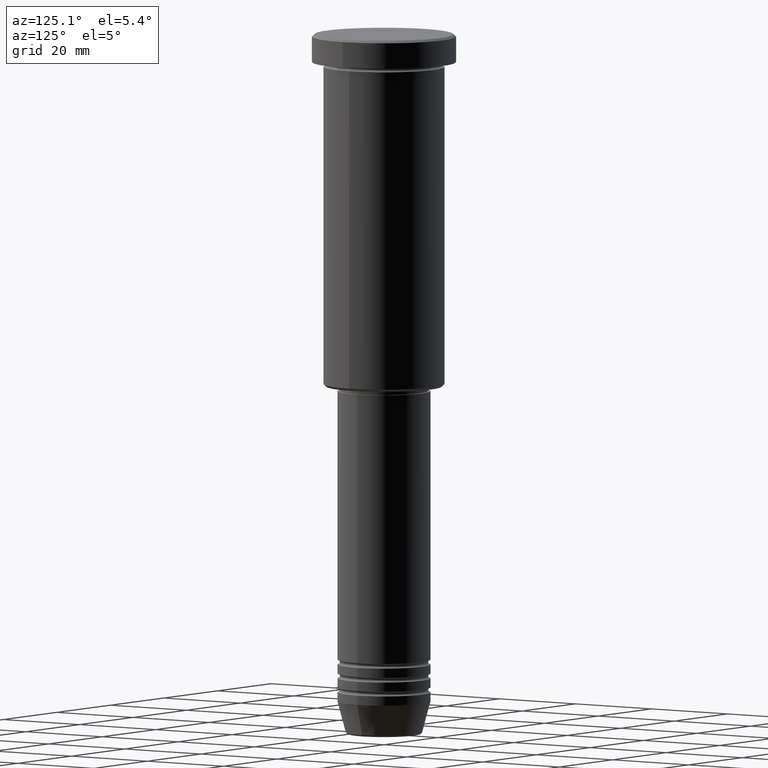
[diagram: clean part render]
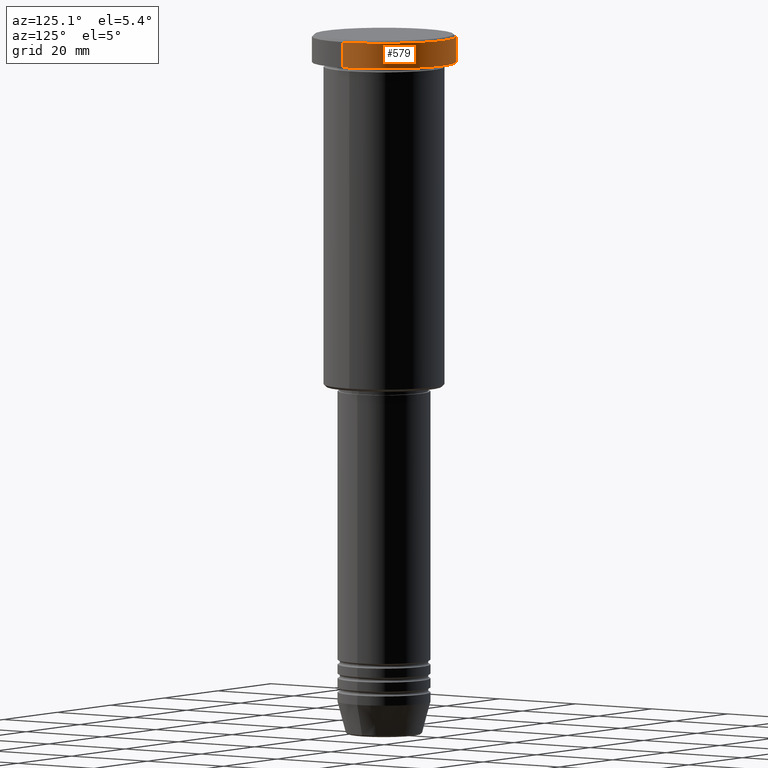
[diagram: same view with one face highlighted and labeled with its STEP entity id]
A machine part, auxiliary view. The second image highlights one B-rep face of the part: STEP entity #579.
In plain terms, the highlighted cylindrical surface (partial cylindrical patch) has radius 15.5 mm, axis along (-0, -0, 1).
Its self-contained STEP definition (entity closure, byte-faithful):
#46 = DIRECTION ( 'NONE',  ( 1.000000000000000000, 0.000000000000000000, 0.000000000000000000 ) ) ;
#53 = EDGE_CURVE ( 'NONE', #1026, #710, #176, .T. ) ;
#99 = CARTESIAN_POINT ( 'NONE',  ( 0.000000000000000000, 0.000000000000000000, 0.000000000000000000 ) ) ;
#112 = DIRECTION ( 'NONE',  ( -0.000000000000000000, -0.000000000000000000, 1.000000000000000000 ) ) ;
#176 = LINE ( 'NONE', #844, #185 ) ;
#185 = VECTOR ( 'NONE', #485, 1000.000000000000000 ) ;
#204 = ORIENTED_EDGE ( 'NONE', *, *, #853, .T. ) ;
#228 = AXIS2_PLACEMENT_3D ( 'NONE', #1145, #730, #798 ) ;
#255 = EDGE_LOOP ( 'NONE', ( #204, #833, #434, #373 ) ) ;
#283 = CIRCLE ( 'NONE', #228, 15.50000000000000000 ) ;
#315 = DIRECTION ( 'NONE',  ( -0.000000000000000000, -0.000000000000000000, 1.000000000000000000 ) ) ;
#322 = VERTEX_POINT ( 'NONE', #413 ) ;
#324 = EDGE_CURVE ( 'NONE', #322, #665, #1130, .T. ) ;
#373 = ORIENTED_EDGE ( 'NONE', *, *, #324, .F. ) ;
#384 = CIRCLE ( 'NONE', #422, 15.50000000000000000 ) ;
#413 = CARTESIAN_POINT ( 'NONE',  ( 15.50000000000000000, 0.000000000000000000, -5.999999999999995559 ) ) ;
#419 = CARTESIAN_POINT ( 'NONE',  ( -15.50000000000000000, 1.898202538678397557E-15, -0.4999999999999848455 ) ) ;
#422 = AXIS2_PLACEMENT_3D ( 'NONE', #782, #604, #46 ) ;
#434 = ORIENTED_EDGE ( 'NONE', *, *, #720, .T. ) ;
#485 = DIRECTION ( 'NONE',  ( -0.000000000000000000, -0.000000000000000000, 1.000000000000000000 ) ) ;
#579 = ADVANCED_FACE ( 'NONE', ( #747 ), #929, .T. ) ;
#604 = DIRECTION ( 'NONE',  ( 0.000000000000000000, 0.000000000000000000, -1.000000000000000000 ) ) ;
#665 = VERTEX_POINT ( 'NONE', #1135 ) ;
#683 = CARTESIAN_POINT ( 'NONE',  ( 15.50000000000000000, 0.000000000000000000, 0.000000000000000000 ) ) ;
#710 = VERTEX_POINT ( 'NONE', #419 ) ;
#720 = EDGE_CURVE ( 'NONE', #710, #665, #384, .T. ) ;
#730 = DIRECTION ( 'NONE',  ( -0.000000000000000000, -0.000000000000000000, 1.000000000000000000 ) ) ;
#747 = FACE_OUTER_BOUND ( 'NONE', #255, .T. ) ;
#782 = CARTESIAN_POINT ( 'NONE',  ( 0.000000000000000000, 0.000000000000000000, -0.4999999999999848455 ) ) ;
#798 = DIRECTION ( 'NONE',  ( 1.000000000000000000, 0.000000000000000000, 0.000000000000000000 ) ) ;
#833 = ORIENTED_EDGE ( 'NONE', *, *, #53, .T. ) ;
#837 = VECTOR ( 'NONE', #315, 1000.000000000000000 ) ;
#844 = CARTESIAN_POINT ( 'NONE',  ( -15.50000000000000000, 1.898202538678397557E-15, 0.000000000000000000 ) ) ;
#853 = EDGE_CURVE ( 'NONE', #322, #1026, #283, .T. ) ;
#929 = CYLINDRICAL_SURFACE ( 'NONE', #1080, 15.50000000000000000 ) ;
#1019 = DIRECTION ( 'NONE',  ( 1.000000000000000000, 0.000000000000000000, 0.000000000000000000 ) ) ;
#1026 = VERTEX_POINT ( 'NONE', #1107 ) ;
#1080 = AXIS2_PLACEMENT_3D ( 'NONE', #99, #112, #1019 ) ;
#1107 = CARTESIAN_POINT ( 'NONE',  ( -15.50000000000000000, 1.898202538678397557E-15, -5.999999999999995559 ) ) ;
#1130 = LINE ( 'NONE', #683, #837 ) ;
#1135 = CARTESIAN_POINT ( 'NONE',  ( 15.50000000000000000, 0.000000000000000000, -0.4999999999999848455 ) ) ;
#1145 = CARTESIAN_POINT ( 'NONE',  ( 0.000000000000000000, 0.000000000000000000, -5.999999999999995559 ) ) ;